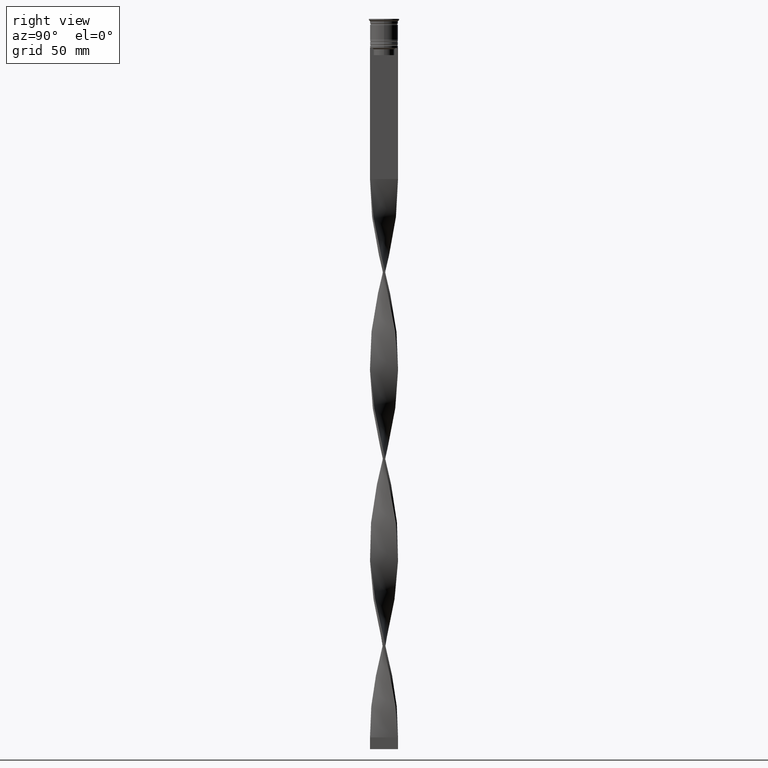
[diagram: clean part render]
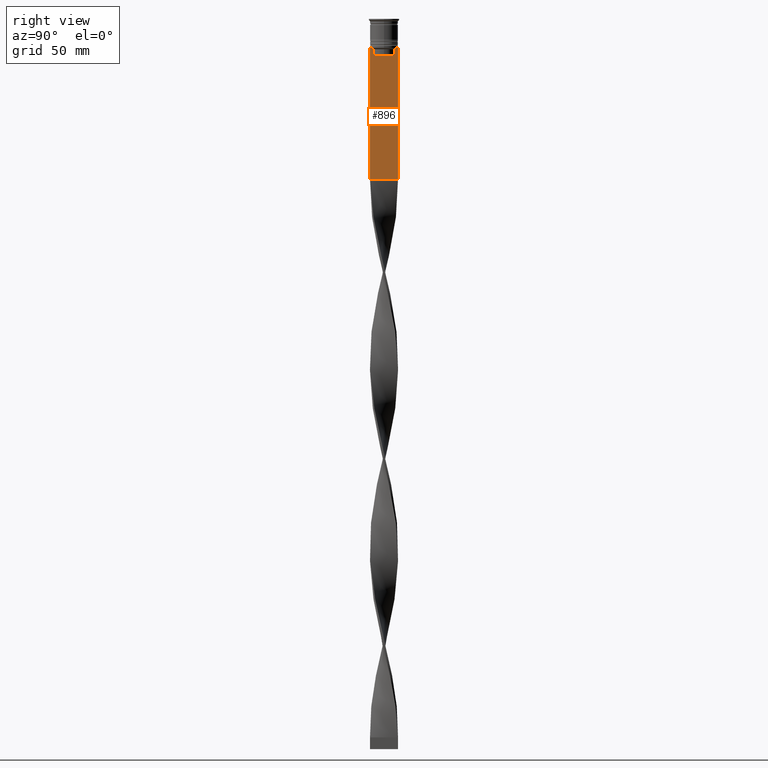
[diagram: same view with one face highlighted and labeled with its STEP entity id]
A machine part, right view. The second image highlights one B-rep face of the part: STEP entity #896.
In plain terms, the highlighted planar face has unit normal (-1, 0, 0).
Its self-contained STEP definition (entity closure, byte-faithful):
#10 = DIRECTION ( 'NONE',  ( 0.000000000000000000, -1.000000000000000000, 0.000000000000000000 ) ) ;
#28 = EDGE_CURVE ( 'NONE', #3215, #786, #1016, .T. ) ;
#62 = DIRECTION ( 'NONE',  ( 0.000000000000000000, -1.000000000000000000, 0.000000000000000000 ) ) ;
#66 = VECTOR ( 'NONE', #62, 1000.000000000000000 ) ;
#191 = VECTOR ( 'NONE', #2740, 1000.000000000000000 ) ;
#196 = CARTESIAN_POINT ( 'NONE',  ( 0.5000000000000002220, 4.371498598878878816, -15.50000000000000000 ) ) ;
#247 = LINE ( 'NONE', #1514, #3185 ) ;
#249 = CARTESIAN_POINT ( 'NONE',  ( 0.5000000000000002220, 4.874423042781576676, -12.50000000000000000 ) ) ;
#251 = DIRECTION ( 'NONE',  ( 0.000000000000000000, -1.000000000000000000, 0.000000000000000000 ) ) ;
#253 = ORIENTED_EDGE ( 'NONE', *, *, #2613, .T. ) ;
#261 = DIRECTION ( 'NONE',  ( 0.000000000000000000, -1.000000000000000000, 0.000000000000000000 ) ) ;
#338 = EDGE_CURVE ( 'NONE', #3004, #451, #406, .T. ) ;
#374 = ORIENTED_EDGE ( 'NONE', *, *, #2196, .T. ) ;
#406 = LINE ( 'NONE', #1032, #1378 ) ;
#451 = VERTEX_POINT ( 'NONE', #3229 ) ;
#459 = AXIS2_PLACEMENT_3D ( 'NONE', #597, #3712, #1507 ) ;
#507 = CARTESIAN_POINT ( 'NONE',  ( 0.5000000000000002220, -6.000000000000000000, -12.50000000000000000 ) ) ;
#515 = VERTEX_POINT ( 'NONE', #2310 ) ;
#546 = LINE ( 'NONE', #1830, #3978 ) ;
#561 = CARTESIAN_POINT ( 'NONE',  ( 0.5000000000000002220, -4.371498598878878816, -13.00000000000000178 ) ) ;
#597 = CARTESIAN_POINT ( 'NONE',  ( 0.5000000000000002220, -6.000000000000000000, -0.4584054212077061097 ) ) ;
#658 = ORIENTED_EDGE ( 'NONE', *, *, #2376, .F. ) ;
#673 = CARTESIAN_POINT ( 'NONE',  ( 0.5000000000000002220, 4.399999999999999467, -15.50000000000000000 ) ) ;
#705 = CARTESIAN_POINT ( 'NONE',  ( 0.5000000000000002220, -6.000000000000000000, -0.4584054212077061097 ) ) ;
#713 = ORIENTED_EDGE ( 'NONE', *, *, #28, .T. ) ;
#786 = VERTEX_POINT ( 'NONE', #1471 ) ;
#825 = CARTESIAN_POINT ( 'NONE',  ( 0.5000000000000002220, -4.371498598878878816, 0.000000000000000000 ) ) ;
#842 = CARTESIAN_POINT ( 'NONE',  ( 0.5000000000000002220, 4.706831415367288329, -12.66671683478479160 ) ) ;
#896 = ADVANCED_FACE ( 'NONE', ( #2472 ), #3439, .F. ) ;
#918 = VECTOR ( 'NONE', #3234, 1000.000000000000000 ) ;
#969 = ORIENTED_EDGE ( 'NONE', *, *, #338, .T. ) ;
#1016 = LINE ( 'NONE', #705, #918 ) ;
#1032 = CARTESIAN_POINT ( 'NONE',  ( 0.5000000000000002220, -6.000000000000000000, -12.50000000000000000 ) ) ;
#1037 = LINE ( 'NONE', #2621, #3120 ) ;
#1078 = CARTESIAN_POINT ( 'NONE',  ( 0.5000000000000002220, -4.874423042781576676, -12.50000000000000000 ) ) ;
#1081 = EDGE_CURVE ( 'NONE', #3977, #2057, #3668, .T. ) ;
#1104 = EDGE_CURVE ( 'NONE', #2892, #1725, #3753, .T. ) ;
#1113 = LINE ( 'NONE', #507, #3781 ) ;
#1120 = VERTEX_POINT ( 'NONE', #196 ) ;
#1167 = ORIENTED_EDGE ( 'NONE', *, *, #1104, .T. ) ;
#1186 = CARTESIAN_POINT ( 'NONE',  ( 0.5000000000000002220, 4.371498598878878816, 0.000000000000000000 ) ) ;
#1190 = CARTESIAN_POINT ( 'NONE',  ( 0.5000000000000002220, 4.539195634199896467, -12.83338923751318816 ) ) ;
#1282 = ORIENTED_EDGE ( 'NONE', *, *, #1081, .T. ) ;
#1331 = EDGE_LOOP ( 'NONE', ( #2932, #1167, #253, #1534, #1282, #3587, #3736, #2095, #713, #374, #658, #969 ) ) ;
#1334 = CARTESIAN_POINT ( 'NONE',  ( 0.5000000000000002220, -4.371498598878878816, -15.50000000000000000 ) ) ;
#1378 = VECTOR ( 'NONE', #10, 1000.000000000000000 ) ;
#1471 = CARTESIAN_POINT ( 'NONE',  ( 0.5000000000000002220, -5.999999999999999112, -68.50000000000000000 ) ) ;
#1507 = DIRECTION ( 'NONE',  ( 0.000000000000000000, 0.000000000000000000, 1.000000000000000000 ) ) ;
#1514 = CARTESIAN_POINT ( 'NONE',  ( 0.5000000000000002220, -6.000000000000000000, -68.50000000000000000 ) ) ;
#1534 = ORIENTED_EDGE ( 'NONE', *, *, #2991, .T. ) ;
#1542 = DIRECTION ( 'NONE',  ( 0.000000000000000000, 0.000000000000000000, -1.000000000000000000 ) ) ;
#1553 = EDGE_CURVE ( 'NONE', #451, #2892, #2432, .T. ) ;
#1725 = VERTEX_POINT ( 'NONE', #3671 ) ;
#1744 = VERTEX_POINT ( 'NONE', #3053 ) ;
#1802 = CARTESIAN_POINT ( 'NONE',  ( 0.5000000000000002220, -6.000000000000000000, -12.50000000000000000 ) ) ;
#1809 = DIRECTION ( 'NONE',  ( 0.000000000000000000, 1.000000000000000000, 0.000000000000000000 ) ) ;
#1815 = DIRECTION ( 'NONE',  ( 0.000000000000000000, -1.000000000000000000, 0.000000000000000000 ) ) ;
#1830 = CARTESIAN_POINT ( 'NONE',  ( 0.5000000000000002220, -6.000000000000000000, -12.50000000000000000 ) ) ;
#1831 = EDGE_CURVE ( 'NONE', #3379, #3215, #1113, .T. ) ;
#1915 = CARTESIAN_POINT ( 'NONE',  ( 0.5000000000000002220, -5.878775382679627626, -12.50000000000000000 ) ) ;
#1930 = CARTESIAN_POINT ( 'NONE',  ( 0.5000000000000002220, -6.000000000000000000, -12.50000000000000000 ) ) ;
#2057 = VERTEX_POINT ( 'NONE', #561 ) ;
#2095 = ORIENTED_EDGE ( 'NONE', *, *, #1831, .T. ) ;
#2196 = EDGE_CURVE ( 'NONE', #786, #1744, #247, .T. ) ;
#2306 = CARTESIAN_POINT ( 'NONE',  ( 0.5000000000000002220, -4.371498598878878816, -13.00000000000000178 ) ) ;
#2310 = CARTESIAN_POINT ( 'NONE',  ( 0.5000000000000002220, -4.874423042781576676, -12.50000000000000000 ) ) ;
#2376 = EDGE_CURVE ( 'NONE', #3004, #1744, #1037, .T. ) ;
#2380 = EDGE_CURVE ( 'NONE', #2057, #515, #3148, .T. ) ;
#2432 = LINE ( 'NONE', #1802, #3645 ) ;
#2472 = FACE_OUTER_BOUND ( 'NONE', #1331, .T. ) ;
#2572 = EDGE_CURVE ( 'NONE', #515, #3379, #546, .T. ) ;
#2613 = EDGE_CURVE ( 'NONE', #1725, #1120, #3019, .T. ) ;
#2621 = CARTESIAN_POINT ( 'NONE',  ( 0.5000000000000002220, 6.000000000000000888, -0.4584054212077061097 ) ) ;
#2640 = DIRECTION ( 'NONE',  ( 0.000000000000000000, 0.000000000000000000, -1.000000000000000000 ) ) ;
#2665 = CARTESIAN_POINT ( 'NONE',  ( 0.5000000000000002220, -4.706831372970962768, -12.66671687695981774 ) ) ;
#2740 = DIRECTION ( 'NONE',  ( -0.000000000000000000, -0.000000000000000000, 1.000000000000000000 ) ) ;
#2759 = CARTESIAN_POINT ( 'NONE',  ( 0.5000000000000002220, 4.371498598878878816, -13.00000000000000178 ) ) ;
#2892 = VERTEX_POINT ( 'NONE', #249 ) ;
#2932 = ORIENTED_EDGE ( 'NONE', *, *, #1553, .T. ) ;
#2991 = EDGE_CURVE ( 'NONE', #1120, #3977, #3489, .T. ) ;
#3004 = VERTEX_POINT ( 'NONE', #3224 ) ;
#3019 = LINE ( 'NONE', #1186, #3584 ) ;
#3053 = CARTESIAN_POINT ( 'NONE',  ( 0.5000000000000002220, 6.000000000000000888, -68.50000000000000000 ) ) ;
#3120 = VECTOR ( 'NONE', #2640, 1000.000000000000000 ) ;
#3148 = B_SPLINE_CURVE_WITH_KNOTS ( 'NONE', 3,
 ( #2306, #3567, #2665, #1078 ),
 .UNSPECIFIED., .F., .F.,
 ( 4, 4 ),
 ( 0.02089901220910808308, 0.02161421017310286019 ),
 .UNSPECIFIED. ) ;
#3185 = VECTOR ( 'NONE', #1809, 1000.000000000000000 ) ;
#3215 = VERTEX_POINT ( 'NONE', #1930 ) ;
#3224 = CARTESIAN_POINT ( 'NONE',  ( 0.5000000000000002220, 6.000000000000000888, -12.50000000000000000 ) ) ;
#3229 = CARTESIAN_POINT ( 'NONE',  ( 0.5000000000000002220, 5.878775382679627626, -12.50000000000000000 ) ) ;
#3234 = DIRECTION ( 'NONE',  ( 0.000000000000000000, 0.000000000000000000, -1.000000000000000000 ) ) ;
#3379 = VERTEX_POINT ( 'NONE', #1915 ) ;
#3439 = PLANE ( 'NONE',  #459 ) ;
#3489 = LINE ( 'NONE', #673, #66 ) ;
#3567 = CARTESIAN_POINT ( 'NONE',  ( 0.5000000000000002220, -4.539195586926423331, -12.83338928448044314 ) ) ;
#3584 = VECTOR ( 'NONE', #1542, 1000.000000000000000 ) ;
#3587 = ORIENTED_EDGE ( 'NONE', *, *, #2380, .T. ) ;
#3645 = VECTOR ( 'NONE', #261, 1000.000000000000000 ) ;
#3668 = LINE ( 'NONE', #825, #191 ) ;
#3671 = CARTESIAN_POINT ( 'NONE',  ( 0.5000000000000002220, 4.371498598878878816, -13.00000000000000178 ) ) ;
#3712 = DIRECTION ( 'NONE',  ( -1.000000000000000000, 0.000000000000000000, 0.000000000000000000 ) ) ;
#3736 = ORIENTED_EDGE ( 'NONE', *, *, #2572, .T. ) ;
#3753 = B_SPLINE_CURVE_WITH_KNOTS ( 'NONE', 3,
 ( #4034, #842, #1190, #2759 ),
 .UNSPECIFIED., .F., .F.,
 ( 4, 4 ),
 ( 0.008336552452178421987, 0.009045730124312839626 ),
 .UNSPECIFIED. ) ;
#3781 = VECTOR ( 'NONE', #1815, 1000.000000000000000 ) ;
#3977 = VERTEX_POINT ( 'NONE', #1334 ) ;
#3978 = VECTOR ( 'NONE', #251, 1000.000000000000000 ) ;
#4034 = CARTESIAN_POINT ( 'NONE',  ( 0.5000000000000002220, 4.874423042781576676, -12.50000000000000000 ) ) ;